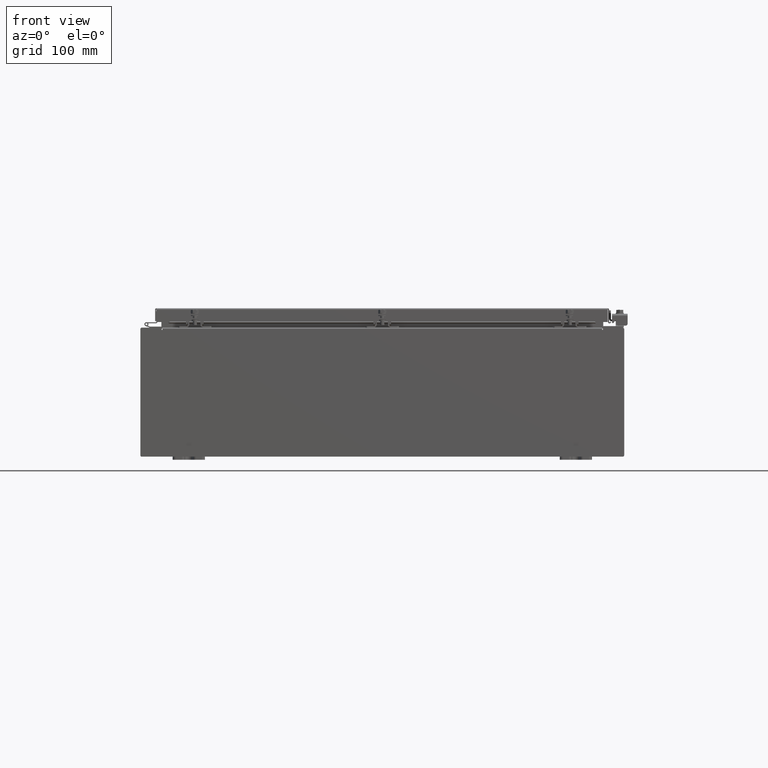
[diagram: clean part render]
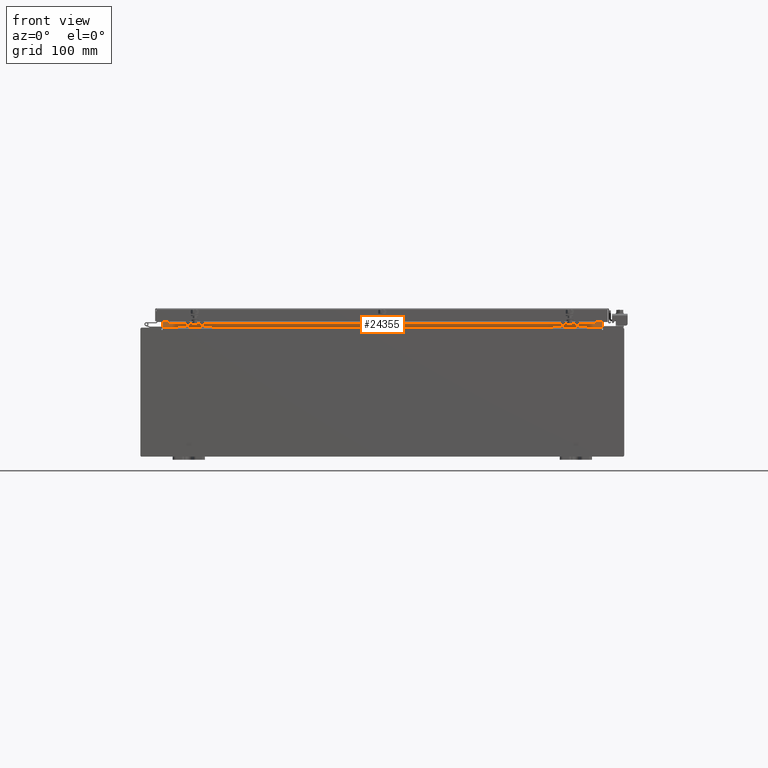
[diagram: same view with one face highlighted and labeled with its STEP entity id]
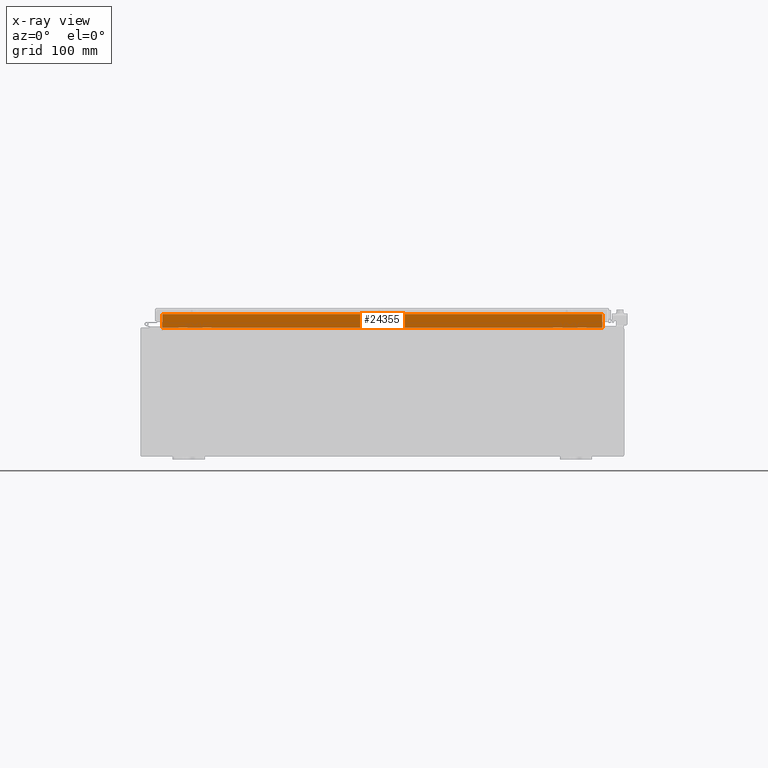
[diagram: x-ray of the same camera — body ghosted, the highlighted face saturated]
A machine part, front view. The second image highlights one B-rep face of the part: STEP entity #24355.
The next image is the same camera in x-ray: the body ghosted, the highlighted face saturated — about 0% of this face is hidden behind the body in this view.
In plain terms, the highlighted planar face has unit normal (0, -1, 0).
Its self-contained STEP definition (entity closure, byte-faithful):
#358 = VECTOR ( 'NONE', #1862, 39.37007874015748100 ) ;
#1862 = DIRECTION ( 'NONE',  ( 1.000000000000000000, 0.0000000000000000000, -2.003232330437526000E-017 ) ) ;
#2803 = LINE ( 'NONE', #10053, #33641 ) ;
#4016 = CARTESIAN_POINT ( 'NONE',  ( 13.63720000000000400, -1.300299999999999300, 4.837600000000003700 ) ) ;
#4296 = CARTESIAN_POINT ( 'NONE',  ( -13.63719999999999800, -1.300299999999999300, 4.837600000000003700 ) ) ;
#4311 = CARTESIAN_POINT ( 'NONE',  ( 13.63720000000000400, -1.300299999999999800, 4.837600000000003700 ) ) ;
#4842 = CARTESIAN_POINT ( 'NONE',  ( -13.63719999999999800, -1.300299999999999800, 4.013000000000003500 ) ) ;
#7428 = LINE ( 'NONE', #14083, #22387 ) ;
#7601 = CARTESIAN_POINT ( 'NONE',  ( -13.63719999999999800, -1.300299999999999800, 4.013000000000003500 ) ) ;
#8511 = PLANE ( 'NONE',  #38424 ) ;
#10053 = CARTESIAN_POINT ( 'NONE',  ( -13.63719999999999800, -1.300299999999999800, 4.000000000000004400 ) ) ;
#10440 = VERTEX_POINT ( 'NONE', #25177 ) ;
#11416 = CARTESIAN_POINT ( 'NONE',  ( 0.0000000000000000000, -1.300299999999999800, 0.0000000000000000000 ) ) ;
#11681 = DIRECTION ( 'NONE',  ( 0.0000000000000000000, 1.000000000000000000, 0.0000000000000000000 ) ) ;
#12767 = DIRECTION ( 'NONE',  ( -1.000000000000000000, -0.0000000000000000000, -0.0000000000000000000 ) ) ;
#14083 = CARTESIAN_POINT ( 'NONE',  ( 13.63720000000000400, -1.300299999999999800, 4.925300000000004500 ) ) ;
#14109 = FACE_OUTER_BOUND ( 'NONE', #26494, .T. ) ;
#14480 = ORIENTED_EDGE ( 'NONE', *, *, #15329, .F. ) ;
#15329 = EDGE_CURVE ( 'NONE', #29418, #10440, #16235, .T. ) ;
#16235 = LINE ( 'NONE', #4842, #358 ) ;
#19327 = ORIENTED_EDGE ( 'NONE', *, *, #28710, .F. ) ;
#19650 = VERTEX_POINT ( 'NONE', #4311 ) ;
#21303 = VECTOR ( 'NONE', #12767, 39.37007874015748100 ) ;
#22387 = VECTOR ( 'NONE', #23087, 39.37007874015748100 ) ;
#23087 = DIRECTION ( 'NONE',  ( -0.0000000000000000000, -0.0000000000000000000, 1.000000000000000000 ) ) ;
#24355 = ADVANCED_FACE ( 'NONE', ( #14109 ), #8511, .T. ) ;
#25177 = CARTESIAN_POINT ( 'NONE',  ( 13.63720000000000000, -1.300299999999999800, 4.013000000000003500 ) ) ;
#26494 = EDGE_LOOP ( 'NONE', ( #37183, #19327, #26536, #14480 ) ) ;
#26536 = ORIENTED_EDGE ( 'NONE', *, *, #26771, .F. ) ;
#26771 = EDGE_CURVE ( 'NONE', #10440, #19650, #7428, .T. ) ;
#28710 = EDGE_CURVE ( 'NONE', #19650, #33156, #37116, .T. ) ;
#29418 = VERTEX_POINT ( 'NONE', #7601 ) ;
#30451 = EDGE_CURVE ( 'NONE', #33156, #29418, #2803, .T. ) ;
#32519 = DIRECTION ( 'NONE',  ( 0.0000000000000000000, -0.0000000000000000000, 1.000000000000000000 ) ) ;
#33156 = VERTEX_POINT ( 'NONE', #4296 ) ;
#33641 = VECTOR ( 'NONE', #36816, 39.37007874015748100 ) ;
#36816 = DIRECTION ( 'NONE',  ( -0.0000000000000000000, -0.0000000000000000000, -1.000000000000000000 ) ) ;
#37116 = LINE ( 'NONE', #4016, #21303 ) ;
#37183 = ORIENTED_EDGE ( 'NONE', *, *, #30451, .F. ) ;
#38424 = AXIS2_PLACEMENT_3D ( 'NONE', #11416, #11681, #32519 ) ;